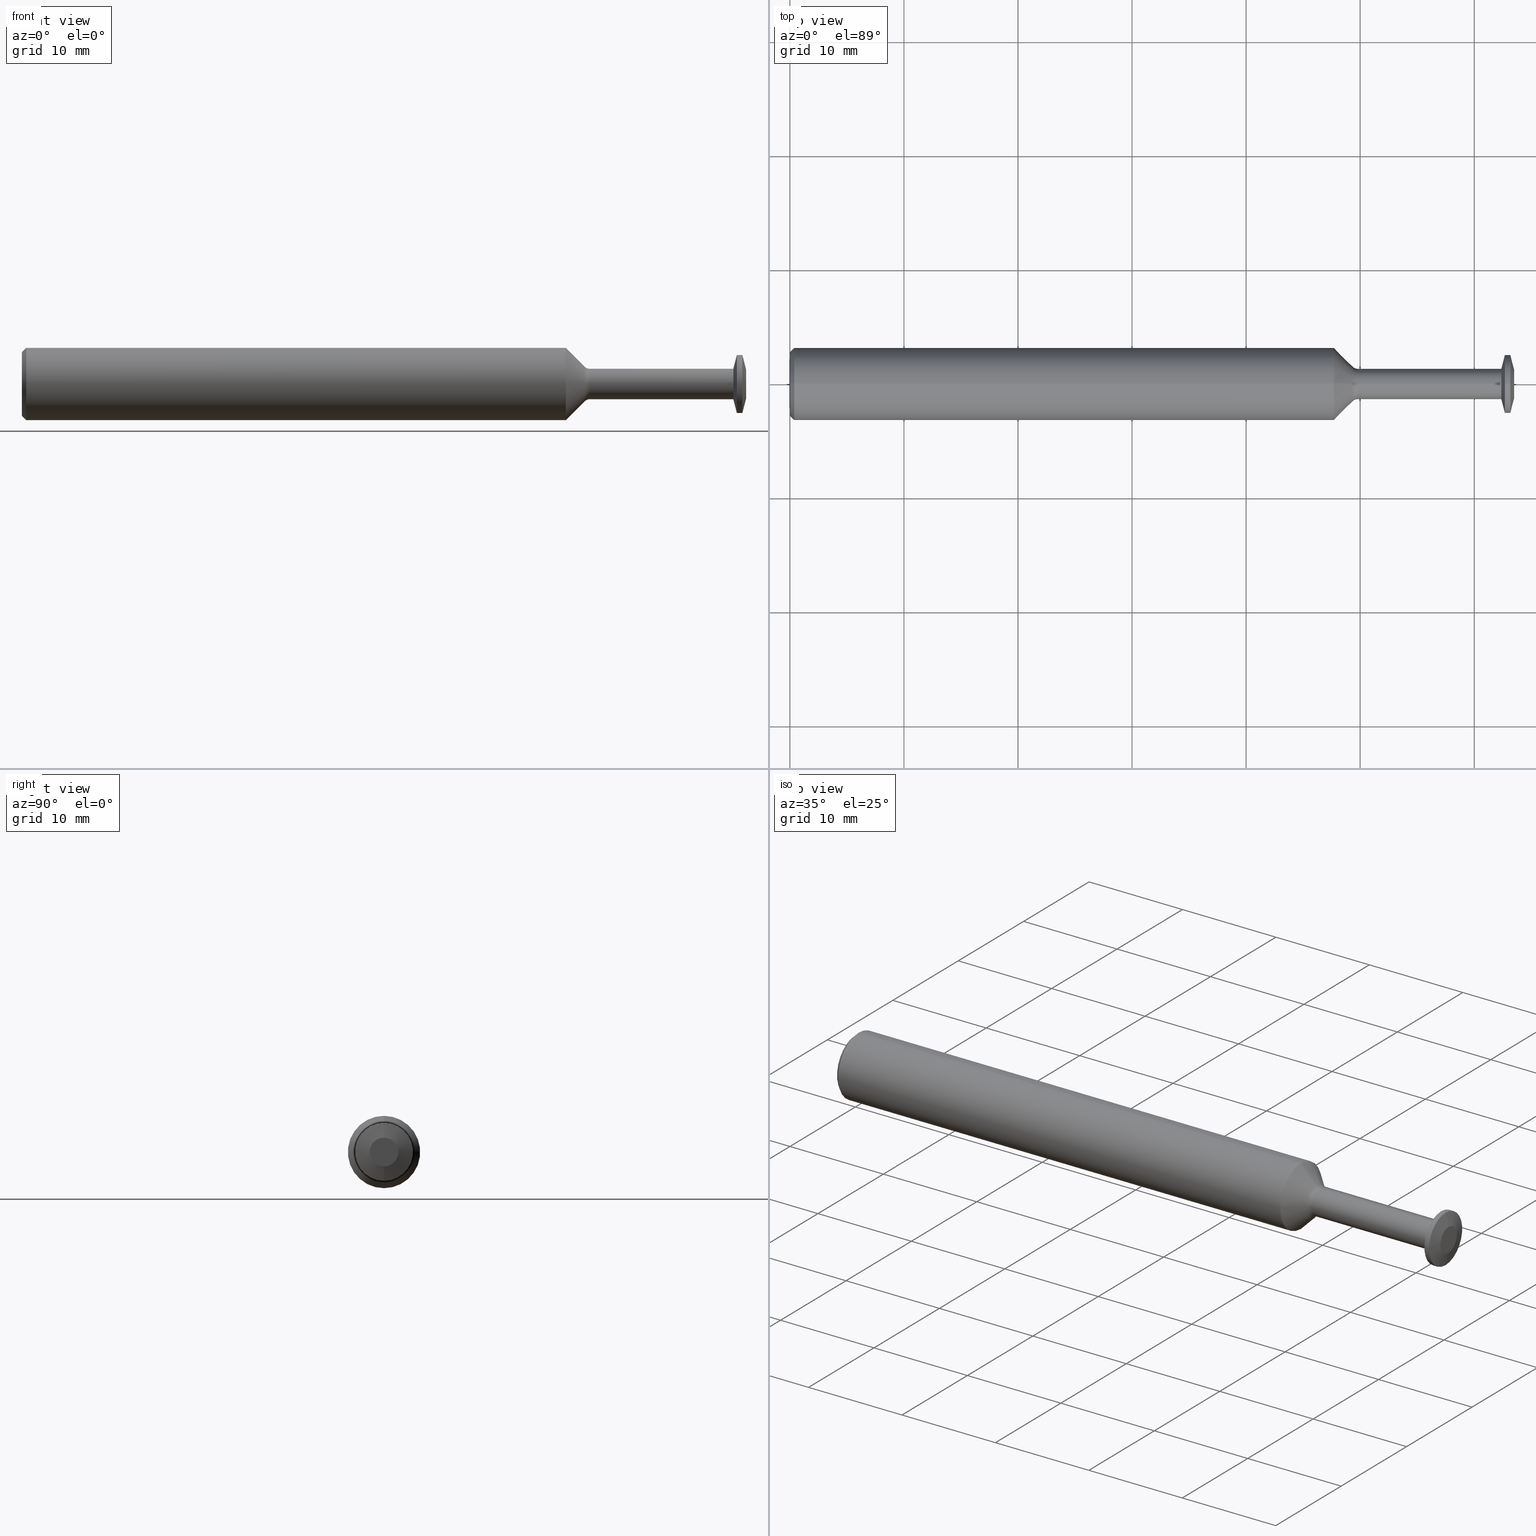
[diagram: canonical four-view strip — front | top / right | iso, engineering-drawing reading convention]
A machine part, canonical four-view strip (front | top / right | iso — engineering-drawing reading convention). The complete STEP part file that produces these views, byte-faithful:
ISO-10303-21;
HEADER;
FILE_DESCRIPTION (( 'STEP AP203' ),
    '1' );
FILE_NAME ('SPTM200FA-14.STEP',
    '2021-12-02T21:36:03',
    ( '' ),
    ( '' ),
    'SwSTEP 2.0',
    'SolidWorks 2020',
    '' );
FILE_SCHEMA (( 'CONFIG_CONTROL_DESIGN' ));
ENDSEC;

DATA;
#1 = DIRECTION ( 'NONE',  ( -1.000000000000000000, -0.000000000000000000, -0.000000000000000000 ) ) ;
#2 = LINE ( 'NONE', #13, #137 ) ;
#3 = CIRCLE ( 'NONE', #298, 0.09999999999999956146 ) ;
#4 = AXIS2_PLACEMENT_3D ( 'NONE', #197, #480, #399 ) ;
#5 = CARTESIAN_POINT ( 'NONE',  ( 1.942677669529663476, 0.000000000000000000, 0.000000000000000000 ) ) ;
#6 = CARTESIAN_POINT ( 'NONE',  ( 1.877650000000000485, 0.000000000000000000, 0.1248500000000000026 ) ) ;
#7 = EDGE_CURVE ( 'NONE', #182, #157, #390, .T. ) ;
#8 = PERSON_AND_ORGANIZATION ( #440, #47 ) ;
#9 = FACE_OUTER_BOUND ( 'NONE', #180, .T. ) ;
#10 = CARTESIAN_POINT ( 'NONE',  ( 0.000000000000000000, 0.000000000000000000, 0.000000000000000000 ) ) ;
#11 = FACE_OUTER_BOUND ( 'NONE', #460, .T. ) ;
#12 = AXIS2_PLACEMENT_3D ( 'NONE', #125, #201, #194 ) ;
#13 = CARTESIAN_POINT ( 'NONE',  ( 2.467933803801429793, 0.000000000000000000, -0.09999999999999954758 ) ) ;
#14 = DIRECTION ( 'NONE',  ( 0.000000000000000000, 0.000000000000000000, 1.000000000000000000 ) ) ;
#15 = ORIENTED_EDGE ( 'NONE', *, *, #324, .T. ) ;
#16 = APPLICATION_PROTOCOL_DEFINITION ( 'international standard', 'config_control_design', 1994, #37 ) ;
#17 = FACE_OUTER_BOUND ( 'NONE', #346, .T. ) ;
#18 = ORIENTED_EDGE ( 'NONE', *, *, #342, .T. ) ;
#19 = DIRECTION ( 'NONE',  ( 0.000000000000000000, 0.000000000000000000, -1.000000000000000000 ) ) ;
#20 = ORIENTED_EDGE ( 'NONE', *, *, #92, .T. ) ;
#21 = EDGE_CURVE ( 'NONE', #215, #225, #318, .T. ) ;
#22 = ORIENTED_EDGE ( 'NONE', *, *, #393, .T. ) ;
#23 = ORIENTED_EDGE ( 'NONE', *, *, #451, .F. ) ;
#24 = AXIS2_PLACEMENT_3D ( 'NONE', #55, #502, #218 ) ;
#25 = AXIS2_PLACEMENT_3D ( 'NONE', #359, #528, #443 ) ;
#26 = ORIENTED_EDGE ( 'NONE', *, *, #7, .T. ) ;
#27 = DIRECTION ( 'NONE',  ( 0.000000000000000000, 0.000000000000000000, 1.000000000000000000 ) ) ;
#28 = CARTESIAN_POINT ( 'NONE',  ( 0.000000000000000000, 0.000000000000000000, 0.1248500000000000026 ) ) ;
#29 = DIRECTION ( 'NONE',  ( 0.000000000000000000, 0.000000000000000000, 1.000000000000000000 ) ) ;
#30 = ORIENTED_EDGE ( 'NONE', *, *, #473, .F. ) ;
#31 = DIRECTION ( 'NONE',  ( 0.000000000000000000, -1.000000000000000000, 0.000000000000000000 ) ) ;
#32 = CIRCLE ( 'NONE', #171, 0.05249999999999999806 ) ;
#33 = ORIENTED_EDGE ( 'NONE', *, *, #44, .T. ) ;
#34 = PRODUCT_DEFINITION_FORMATION_WITH_SPECIFIED_SOURCE ( 'ANY', '', #93, .NOT_KNOWN. ) ;
#35 = CC_DESIGN_DATE_AND_TIME_ASSIGNMENT ( #496, #67, ( #65 ) ) ;
#36 = EDGE_CURVE ( 'NONE', #425, #527, #277, .T. ) ;
#37 = APPLICATION_CONTEXT ( 'configuration controlled 3d designs of mechanical parts and assemblies' ) ;
#38 = DIRECTION ( 'NONE',  ( 0.000000000000000000, 0.000000000000000000, 1.000000000000000000 ) ) ;
#39 = ORIENTED_EDGE ( 'NONE', *, *, #510, .T. ) ;
#40 = CARTESIAN_POINT ( 'NONE',  ( 2.455737876683962817, 9.337931843498541365E-18, 0.05249999999999999806 ) ) ;
#41 = CARTESIAN_POINT ( 'NONE',  ( 2.500000000000000000, 0.04949999999999953049, 0.000000000000000000 ) ) ;
#42 = CARTESIAN_POINT ( 'NONE',  ( 0.01500000000000024925, 1.528971528735470422E-17, -0.1248500000000000026 ) ) ;
#43 = EDGE_CURVE ( 'NONE', #79, #312, #2, .T. ) ;
#44 = EDGE_CURVE ( 'NONE', #263, #312, #289, .T. ) ;
#45 = DIRECTION ( 'NONE',  ( 1.000000000000000000, 0.000000000000000000, 0.000000000000000000 ) ) ;
#46 = CIRCLE ( 'NONE', #105, 0.1098499999999999199 ) ;
#47 = ORGANIZATION ( 'UNSPECIFIED', 'UNSPECIFIED', '' ) ;
#48 = DIRECTION ( 'NONE',  ( 0.000000000000000000, 0.000000000000000000, -1.000000000000000000 ) ) ;
#49 = DIRECTION ( 'NONE',  ( -1.000000000000000000, -0.000000000000000000, -0.000000000000000000 ) ) ;
#50 = CARTESIAN_POINT ( 'NONE',  ( 2.500000000000000000, 0.000000000000000000, 0.04949999999999953049 ) ) ;
#51 = DIRECTION ( 'NONE',  ( 1.000000000000000000, 0.000000000000000000, 0.000000000000000000 ) ) ;
#52 = DIRECTION ( 'NONE',  ( 0.2486898871648567100, 0.000000000000000000, -0.9685831611286307430 ) ) ;
#53 = ADVANCED_FACE ( 'NONE', ( #9 ), #449, .T. ) ;
#54 = LOCAL_TIME ( 13, 36, 3.000000000000000000, #499 ) ;
#55 = CARTESIAN_POINT ( 'NONE',  ( 0.000000000000000000, 0.000000000000000000, 0.000000000000000000 ) ) ;
#56 = EDGE_LOOP ( 'NONE', ( #75, #33, #429, #151 ) ) ;
#57 = PERSON_AND_ORGANIZATION_ROLE ( 'design_supplier' ) ;
#58 = CARTESIAN_POINT ( 'NONE',  ( 0.000000000000000000, 0.000000000000000000, 0.000000000000000000 ) ) ;
#59 = ORIENTED_EDGE ( 'NONE', *, *, #510, .F. ) ;
#60 = APPROVAL_DATE_TIME ( #470, #351 ) ;
#61 = LINE ( 'NONE', #150, #95 ) ;
#62 = EDGE_CURVE ( 'NONE', #69, #523, #167, .T. ) ;
#63 = ORIENTED_EDGE ( 'NONE', *, *, #379, .T. ) ;
#64 = AXIS2_PLACEMENT_3D ( 'NONE', #227, #74, #14 ) ;
#65 = SECURITY_CLASSIFICATION ( '', '', #461 ) ;
#66 = ORIENTED_EDGE ( 'NONE', *, *, #451, .T. ) ;
#67 = DATE_TIME_ROLE ( 'classification_date' ) ;
#68 = VECTOR ( 'NONE', #49, 39.37007874015748143 ) ;
#69 = VERTEX_POINT ( 'NONE', #208 ) ;
#70 = COORDINATED_UNIVERSAL_TIME_OFFSET ( 8, 0, .BEHIND. ) ;
#71 = DIRECTION ( 'NONE',  ( -1.000000000000000000, -0.000000000000000000, -0.000000000000000000 ) ) ;
#72 = VECTOR ( 'NONE', #297, 39.37007874015748143 ) ;
#73 = EDGE_LOOP ( 'NONE', ( #396, #515, #20, #110 ) ) ;
#74 = DIRECTION ( 'NONE',  ( -1.000000000000000000, -0.000000000000000000, -0.000000000000000000 ) ) ;
#75 = ORIENTED_EDGE ( 'NONE', *, *, #516, .T. ) ;
#76 = CARTESIAN_POINT ( 'NONE',  ( 0.000000000000000000, 0.000000000000000000, -0.1098499999999999199 ) ) ;
#77 = ORIENTED_EDGE ( 'NONE', *, *, #206, .T. ) ;
#78 = CARTESIAN_POINT ( 'NONE',  ( 2.467933803801429793, 0.000000000000000000, 0.000000000000000000 ) ) ;
#79 = VERTEX_POINT ( 'NONE', #361 ) ;
#80 = CIRCLE ( 'NONE', #12, 0.1098499999999999199 ) ;
#81 = DIRECTION ( 'NONE',  ( -1.000000000000000000, -0.000000000000000000, -0.000000000000000000 ) ) ;
#82 = LINE ( 'NONE', #364, #522 ) ;
#83 = ADVANCED_FACE ( 'NONE', ( #249 ), #85, .T. ) ;
#84 = CARTESIAN_POINT ( 'NONE',  ( 2.455737876683962817, 0.000000000000000000, 0.000000000000000000 ) ) ;
#85 = CYLINDRICAL_SURFACE ( 'NONE', #271, 0.1248500000000000026 ) ;
#86 = CYLINDRICAL_SURFACE ( 'NONE', #283, 0.1248500000000000026 ) ;
#87 = DIRECTION ( 'NONE',  ( 0.000000000000000000, 0.000000000000000000, -1.000000000000000000 ) ) ;
#88 = CONICAL_SURFACE ( 'NONE', #352, 0.05982233047033617968, 0.7853981633974533860 ) ;
#89 = FACE_OUTER_BOUND ( 'NONE', #345, .T. ) ;
#90 = COORDINATED_UNIVERSAL_TIME_OFFSET ( 8, 0, .BEHIND. ) ;
#91 = FACE_OUTER_BOUND ( 'NONE', #56, .T. ) ;
#92 = EDGE_CURVE ( 'NONE', #225, #436, #121, .T. ) ;
#93 = PRODUCT ( 'SPTM200FA-14', 'SPTM200FA-14', '', ( #166 ) ) ;
#94 = FACE_OUTER_BOUND ( 'NONE', #441, .T. ) ;
#95 = VECTOR ( 'NONE', #343, 39.37007874015748143 ) ;
#96 = APPROVAL_DATE_TIME ( #327, #221 ) ;
#97 = AXIS2_PLACEMENT_3D ( 'NONE', #321, #120, #439 ) ;
#98 = FACE_OUTER_BOUND ( 'NONE', #432, .T. ) ;
#99 = ORIENTED_EDGE ( 'NONE', *, *, #411, .T. ) ;
#100 = PERSON_AND_ORGANIZATION ( #440, #47 ) ;
#101 = ADVANCED_FACE ( 'NONE', ( #89 ), #360, .T. ) ;
#102 = CARTESIAN_POINT ( 'NONE',  ( 1.942677669529663476, 0.000000000000000000, 0.000000000000000000 ) ) ;
#103 = PRODUCT_DEFINITION_SHAPE ( 'NONE', 'NONE',  #514 ) ;
#104 = ORIENTED_EDGE ( 'NONE', *, *, #279, .T. ) ;
#105 = AXIS2_PLACEMENT_3D ( 'NONE', #295, #323, #87 ) ;
#106 = APPROVAL_PERSON_ORGANIZATION ( #8, #132, #413 ) ;
#107 = ORIENTED_EDGE ( 'NONE', *, *, #223, .F. ) ;
#108 = ORIENTED_EDGE ( 'NONE', *, *, #324, .F. ) ;
#109 = FACE_OUTER_BOUND ( 'NONE', #113, .T. ) ;
#110 = ORIENTED_EDGE ( 'NONE', *, *, #335, .F. ) ;
#111 = FACE_OUTER_BOUND ( 'NONE', #300, .T. ) ;
#112 = AXIS2_PLACEMENT_3D ( 'NONE', #58, #519, #27 ) ;
#113 = EDGE_LOOP ( 'NONE', ( #222, #59, #438, #259 ) ) ;
#114 = DIRECTION ( 'NONE',  ( 0.000000000000000000, 0.000000000000000000, 1.000000000000000000 ) ) ;
#115 = ADVANCED_FACE ( 'NONE', ( #373 ), #272, .T. ) ;
#116 = ORIENTED_EDGE ( 'NONE', *, *, #183, .F. ) ;
#117 = MANIFOLD_SOLID_BREP ( 'Chamfer1', #269 ) ;
#118 = CARTESIAN_POINT ( 'NONE',  ( 1.960355339059327573, 6.429395695523591642E-18, -0.05249999999999986622 ) ) ;
#119 = VERTEX_POINT ( 'NONE', #367 ) ;
#120 = DIRECTION ( 'NONE',  ( 1.000000000000000000, 0.000000000000000000, 0.000000000000000000 ) ) ;
#121 = LINE ( 'NONE', #50, #184 ) ;
#122 = VECTOR ( 'NONE', #521, 39.37007874015748143 ) ;
#123 = LINE ( 'NONE', #285, #146 ) ;
#124 = DIRECTION ( 'NONE',  ( 0.000000000000000000, 0.000000000000000000, 1.000000000000000000 ) ) ;
#125 = CARTESIAN_POINT ( 'NONE',  ( 0.000000000000000000, 0.000000000000000000, 0.000000000000000000 ) ) ;
#126 = CARTESIAN_POINT ( 'NONE',  ( 2.500000000000000000, 0.000000000000000000, 0.000000000000000000 ) ) ;
#127 = PERSON_AND_ORGANIZATION_ROLE ( 'classification_officer' ) ;
#128 = DIRECTION ( 'NONE',  ( 0.000000000000000000, 0.000000000000000000, 1.000000000000000000 ) ) ;
#129 = AXIS2_PLACEMENT_3D ( 'NONE', #282, #1, #246 ) ;
#130 = VECTOR ( 'NONE', #175, 39.37007874015748143 ) ;
#131 = APPROVAL_STATUS ( 'not_yet_approved' ) ;
#132 = APPROVAL ( #131, 'UNSPECIFIED' ) ;
#133 = EDGE_CURVE ( 'NONE', #523, #465, #82, .T. ) ;
#134 = DIRECTION ( 'NONE',  ( -0.2486898871648597353, 0.000000000000000000, 0.9685831611286298548 ) ) ;
#135 = CARTESIAN_POINT ( 'NONE',  ( 2.500000000000000000, 6.062001655779341041E-18, -0.04949999999999953049 ) ) ;
#136 = DATE_AND_TIME ( #251, #524 ) ;
#137 = VECTOR ( 'NONE', #52, 39.37007874015748143 ) ;
#138 = CARTESIAN_POINT ( 'NONE',  ( 1.960355339059327351, 0.000000000000000000, 0.000000000000000000 ) ) ;
#139 = ORIENTED_EDGE ( 'NONE', *, *, #529, .F. ) ;
#140 = VECTOR ( 'NONE', #453, 39.37007874015748143 ) ;
#141 = CC_DESIGN_APPROVAL ( #132, ( #514 ) ) ;
#142 = DIRECTION ( 'NONE',  ( -1.000000000000000000, -0.000000000000000000, -0.000000000000000000 ) ) ;
#143 = DIRECTION ( 'NONE',  ( 0.000000000000000000, 0.000000000000000000, 1.000000000000000000 ) ) ;
#144 = ORIENTED_EDGE ( 'NONE', *, *, #304, .F. ) ;
#145 = APPROVAL_ROLE ( '' ) ;
#146 = VECTOR ( 'NONE', #445, 39.37007874015748143 ) ;
#147 = EDGE_CURVE ( 'NONE', #375, #468, #46, .T. ) ;
#148 = ORIENTED_EDGE ( 'NONE', *, *, #62, .T. ) ;
#149 = ORIENTED_EDGE ( 'NONE', *, *, #418, .F. ) ;
#150 = CARTESIAN_POINT ( 'NONE',  ( 0.000000000000000000, 0.000000000000000000, -0.1098499999999999199 ) ) ;
#151 = ORIENTED_EDGE ( 'NONE', *, *, #435, .F. ) ;
#152 = EDGE_CURVE ( 'NONE', #69, #380, #484, .T. ) ;
#153 = FACE_OUTER_BOUND ( 'NONE', #193, .T. ) ;
#154 = AXIS2_PLACEMENT_3D ( 'NONE', #126, #508, #143 ) ;
#155 = ORIENTED_EDGE ( 'NONE', *, *, #279, .F. ) ;
#156 = DIRECTION ( 'NONE',  ( -1.000000000000000000, -0.000000000000000000, -0.000000000000000000 ) ) ;
#157 = VERTEX_POINT ( 'NONE', #407 ) ;
#158 = CARTESIAN_POINT ( 'NONE',  ( 1.942677669529663476, 0.000000000000000000, 0.000000000000000000 ) ) ;
#159 = ORIENTED_EDGE ( 'NONE', *, *, #334, .F. ) ;
#160 = VECTOR ( 'NONE', #293, 39.37007874015748143 ) ;
#161 = DIRECTION ( 'NONE',  ( -1.000000000000000000, -0.000000000000000000, -0.000000000000000000 ) ) ;
#162 = CONICAL_SURFACE ( 'NONE', #397, 0.04949999999999953049, 1.319468914507708091 ) ;
#163 = CARTESIAN_POINT ( 'NONE',  ( 0.000000000000000000, 0.000000000000000000, 0.000000000000000000 ) ) ;
#164 = LINE ( 'NONE', #363, #122 ) ;
#165 = LINE ( 'NONE', #205, #140 ) ;
#166 = MECHANICAL_CONTEXT ( 'NONE', #478, 'mechanical' ) ;
#167 = LINE ( 'NONE', #447, #369 ) ;
#168 = PERSON_AND_ORGANIZATION_ROLE ( 'creator' ) ;
#169 = ADVANCED_FACE ( 'NONE', ( #91 ), #402, .T. ) ;
#170 = PLANE ( 'NONE',  #504 ) ;
#171 = AXIS2_PLACEMENT_3D ( 'NONE', #189, #378, #301 ) ;
#172 = LOCAL_TIME ( 13, 36, 3.000000000000000000, #70 ) ;
#173 = PERSON_AND_ORGANIZATION_ROLE ( 'design_owner' ) ;
#174 = DIRECTION ( 'NONE',  ( -1.000000000000000000, -0.000000000000000000, -0.000000000000000000 ) ) ;
#175 = DIRECTION ( 'NONE',  ( -0.7071067811865439090, 0.000000000000000000, 0.7071067811865511255 ) ) ;
#176 = CARTESIAN_POINT ( 'NONE',  ( 2.487033803801429688, 0.000000000000000000, 0.000000000000000000 ) ) ;
#177 = ORIENTED_EDGE ( 'NONE', *, *, #133, .T. ) ;
#178 = DATE_AND_TIME ( #294, #54 ) ;
#179 = CARTESIAN_POINT ( 'NONE',  ( 0.01500000000000024925, 0.000000000000000000, 0.000000000000000000 ) ) ;
#180 = EDGE_LOOP ( 'NONE', ( #239, #266, #159, #196 ) ) ;
#181 = CIRCLE ( 'NONE', #431, 0.1248500000000000026 ) ;
#182 = VERTEX_POINT ( 'NONE', #6 ) ;
#183 = EDGE_CURVE ( 'NONE', #468, #157, #165, .T. ) ;
#184 = VECTOR ( 'NONE', #134, 39.37007874015748143 ) ;
#185 = AXIS2_PLACEMENT_3D ( 'NONE', #163, #498, #336 ) ;
#186 = CALENDAR_DATE ( 2021, 2, 12 ) ;
#187 = CIRCLE ( 'NONE', #458, 0.05982233047033617968 ) ;
#188 = ORIENTED_EDGE ( 'NONE', *, *, #379, .F. ) ;
#189 = CARTESIAN_POINT ( 'NONE',  ( 2.455737876683962817, 0.000000000000000000, 0.000000000000000000 ) ) ;
#190 = DIRECTION ( 'NONE',  ( -1.000000000000000000, -0.000000000000000000, -0.000000000000000000 ) ) ;
#191 = ADVANCED_FACE ( 'NONE', ( #11 ), #170, .F. ) ;
#192 = DIRECTION ( 'NONE',  ( -1.000000000000000000, -0.000000000000000000, -0.000000000000000000 ) ) ;
#193 = EDGE_LOOP ( 'NONE', ( #99, #177, #463, #350 ) ) ;
#194 = DIRECTION ( 'NONE',  ( 0.000000000000000000, 0.000000000000000000, -1.000000000000000000 ) ) ;
#195 = AXIS2_PLACEMENT_3D ( 'NONE', #406, #81, #242 ) ;
#196 = ORIENTED_EDGE ( 'NONE', *, *, #36, .F. ) ;
#197 = CARTESIAN_POINT ( 'NONE',  ( 2.487033803801429688, 0.000000000000000000, 0.000000000000000000 ) ) ;
#198 = ORIENTED_EDGE ( 'NONE', *, *, #152, .T. ) ;
#199 = DIRECTION ( 'NONE',  ( -1.000000000000000000, -0.000000000000000000, -0.000000000000000000 ) ) ;
#200 = DIRECTION ( 'NONE',  ( -0.000000000000000000, 0.000000000000000000, 1.000000000000000000 ) ) ;
#201 = DIRECTION ( 'NONE',  ( -1.000000000000000000, -0.000000000000000000, -0.000000000000000000 ) ) ;
#202 = DIRECTION ( 'NONE',  ( -0.7071067811865439090, 8.659560562354977232E-17, -0.7071067811865511255 ) ) ;
#203 = LOCAL_TIME ( 13, 36, 3.000000000000000000, #207 ) ;
#204 =( CONVERSION_BASED_UNIT ( 'INCH', #296 ) LENGTH_UNIT ( ) NAMED_UNIT ( #526 ) );
#205 = CARTESIAN_POINT ( 'NONE',  ( 0.000000000000000000, 1.345274508863366152E-17, 0.1098499999999999199 ) ) ;
#206 = EDGE_CURVE ( 'NONE', #380, #527, #495, .T. ) ;
#207 = COORDINATED_UNIVERSAL_TIME_OFFSET ( 8, 0, .BEHIND. ) ;
#208 = CARTESIAN_POINT ( 'NONE',  ( 1.942677669529663476, 7.326122552803247916E-18, -0.05982233047033626294 ) ) ;
#209 = LINE ( 'NONE', #370, #130 ) ;
#210 = AXIS2_PLACEMENT_3D ( 'NONE', #211, #45, #245 ) ;
#211 = CARTESIAN_POINT ( 'NONE',  ( 2.467933803801429793, 0.000000000000000000, 0.000000000000000000 ) ) ;
#212 =( GEOMETRIC_REPRESENTATION_CONTEXT ( 3 ) GLOBAL_UNCERTAINTY_ASSIGNED_CONTEXT ( ( #518 ) ) GLOBAL_UNIT_ASSIGNED_CONTEXT ( ( #204, #408, #417 ) ) REPRESENTATION_CONTEXT ( 'NONE', 'WORKASPACE' ) );
#213 = APPROVAL_STATUS ( 'not_yet_approved' ) ;
#214 = DIRECTION ( 'NONE',  ( 0.000000000000000000, 0.000000000000000000, 1.000000000000000000 ) ) ;
#215 = VERTEX_POINT ( 'NONE', #490 ) ;
#216 = DESIGN_CONTEXT ( 'detailed design', #37, 'design' ) ;
#217 = APPROVAL_DATE_TIME ( #178, #132 ) ;
#218 = DIRECTION ( 'NONE',  ( 0.000000000000000000, 0.000000000000000000, -1.000000000000000000 ) ) ;
#219 = SHAPE_DEFINITION_REPRESENTATION ( #103, #385 ) ;
#220 = DIRECTION ( 'NONE',  ( -1.000000000000000000, -0.000000000000000000, -0.000000000000000000 ) ) ;
#221 = APPROVAL ( #213, 'UNSPECIFIED' ) ;
#222 = ORIENTED_EDGE ( 'NONE', *, *, #152, .F. ) ;
#223 = EDGE_CURVE ( 'NONE', #225, #215, #381, .T. ) ;
#224 = ORIENTED_EDGE ( 'NONE', *, *, #411, .F. ) ;
#225 = VERTEX_POINT ( 'NONE', #273 ) ;
#226 = AXIS2_PLACEMENT_3D ( 'NONE', #459, #232, #29 ) ;
#227 = CARTESIAN_POINT ( 'NONE',  ( 1.877650000000000485, 0.000000000000000000, 0.000000000000000000 ) ) ;
#228 = CC_DESIGN_PERSON_AND_ORGANIZATION_ASSIGNMENT ( #100, #127, ( #65 ) ) ;
#229 = CIRCLE ( 'NONE', #4, 0.09999999999999956146 ) ;
#230 = ADVANCED_FACE ( 'NONE', ( #506 ), #162, .T. ) ;
#231 = ORIENTED_EDGE ( 'NONE', *, *, #44, .F. ) ;
#232 = DIRECTION ( 'NONE',  ( -1.000000000000000000, -0.000000000000000000, -0.000000000000000000 ) ) ;
#233 = ORIENTED_EDGE ( 'NONE', *, *, #43, .T. ) ;
#234 = LINE ( 'NONE', #437, #372 ) ;
#235 = ORIENTED_EDGE ( 'NONE', *, *, #281, .T. ) ;
#236 = FACE_OUTER_BOUND ( 'NONE', #307, .T. ) ;
#237 = CIRCLE ( 'NONE', #226, 0.05249999999999986622 ) ;
#238 = CONICAL_SURFACE ( 'NONE', #97, 0.09999999999999954758, 1.319468914507711199 ) ;
#239 = ORIENTED_EDGE ( 'NONE', *, *, #304, .T. ) ;
#240 = CC_DESIGN_PERSON_AND_ORGANIZATION_ASSIGNMENT ( #450, #168, ( #34 ) ) ;
#241 = ADVANCED_FACE ( 'NONE', ( #462 ), #457, .F. ) ;
#242 = DIRECTION ( 'NONE',  ( 0.000000000000000000, 0.000000000000000000, 1.000000000000000000 ) ) ;
#243 = DIRECTION ( 'NONE',  ( 0.000000000000000000, 0.000000000000000000, 1.000000000000000000 ) ) ;
#244 = CARTESIAN_POINT ( 'NONE',  ( 0.000000000000000000, 0.000000000000000000, 0.000000000000000000 ) ) ;
#245 = DIRECTION ( 'NONE',  ( 0.000000000000000000, 0.000000000000000000, -1.000000000000000000 ) ) ;
#246 = DIRECTION ( 'NONE',  ( 0.000000000000000000, 0.000000000000000000, 1.000000000000000000 ) ) ;
#247 = AXIS2_PLACEMENT_3D ( 'NONE', #430, #71, #419 ) ;
#248 = EDGE_CURVE ( 'NONE', #465, #157, #181, .T. ) ;
#249 = FACE_OUTER_BOUND ( 'NONE', #340, .T. ) ;
#250 = DIRECTION ( 'NONE',  ( -1.000000000000000000, -0.000000000000000000, -0.000000000000000000 ) ) ;
#251 = CALENDAR_DATE ( 2021, 2, 12 ) ;
#252 = DIRECTION ( 'NONE',  ( -1.000000000000000000, -0.000000000000000000, -0.000000000000000000 ) ) ;
#253 = VECTOR ( 'NONE', #190, 39.37007874015748143 ) ;
#254 = DIRECTION ( 'NONE',  ( 0.000000000000000000, 0.000000000000000000, 1.000000000000000000 ) ) ;
#255 = AXIS2_PLACEMENT_3D ( 'NONE', #284, #366, #494 ) ;
#256 = PLANE ( 'NONE',  #24 ) ;
#257 = AXIS2_PLACEMENT_3D ( 'NONE', #84, #161, #38 ) ;
#258 = DIRECTION ( 'NONE',  ( 1.000000000000000000, 0.000000000000000000, 0.000000000000000000 ) ) ;
#259 = ORIENTED_EDGE ( 'NONE', *, *, #334, .T. ) ;
#260 = APPLICATION_PROTOCOL_DEFINITION ( 'international standard', 'config_control_design', 1994, #478 ) ;
#261 = CYLINDRICAL_SURFACE ( 'NONE', #112, 0.05249999999999993561 ) ;
#262 = ADVANCED_FACE ( 'NONE', ( #389 ), #261, .T. ) ;
#263 = VERTEX_POINT ( 'NONE', #382 ) ;
#264 = AXIS2_PLACEMENT_3D ( 'NONE', #409, #328, #404 ) ;
#265 = APPROVAL_STATUS ( 'not_yet_approved' ) ;
#266 = ORIENTED_EDGE ( 'NONE', *, *, #473, .T. ) ;
#267 = ORIENTED_EDGE ( 'NONE', *, *, #43, .F. ) ;
#268 = CARTESIAN_POINT ( 'NONE',  ( 1.960355339059327351, 0.000000000000000000, 0.000000000000000000 ) ) ;
#269 = CLOSED_SHELL ( 'NONE', ( #115, #493, #353, #241, #53, #428, #169, #371, #191, #230, #315, #101, #262, #288, #485, #83, #368, #466 ) ) ;
#270 = ORIENTED_EDGE ( 'NONE', *, *, #529, .T. ) ;
#271 = AXIS2_PLACEMENT_3D ( 'NONE', #452, #174, #243 ) ;
#272 = CONICAL_SURFACE ( 'NONE', #185, 0.1098499999999999199, 0.7853981633974426169 ) ;
#273 = CARTESIAN_POINT ( 'NONE',  ( 2.500000000000000000, 0.000000000000000000, 0.04949999999999953049 ) ) ;
#274 = CONICAL_SURFACE ( 'NONE', #354, 0.05982233047033617968, 0.7853981633974533860 ) ;
#275 = EDGE_LOOP ( 'NONE', ( #149, #392, #427, #155 ) ) ;
#276 = CARTESIAN_POINT ( 'NONE',  ( 1.960355339059327351, 0.000000000000000000, 0.07749999999999952760 ) ) ;
#277 = LINE ( 'NONE', #412, #160 ) ;
#278 = CARTESIAN_POINT ( 'NONE',  ( 0.000000000000000000, 0.000000000000000000, 0.000000000000000000 ) ) ;
#279 = EDGE_CURVE ( 'NONE', #375, #465, #61, .T. ) ;
#280 = EDGE_LOOP ( 'NONE', ( #116, #356, #104, #471 ) ) ;
#281 = EDGE_CURVE ( 'NONE', #157, #465, #405, .T. ) ;
#282 = CARTESIAN_POINT ( 'NONE',  ( 2.500000000000000000, 0.000000000000000000, 0.000000000000000000 ) ) ;
#283 = AXIS2_PLACEMENT_3D ( 'NONE', #278, #477, #114 ) ;
#284 = CARTESIAN_POINT ( 'NONE',  ( 0.000000000000000000, 0.000000000000000000, 0.000000000000000000 ) ) ;
#285 = CARTESIAN_POINT ( 'NONE',  ( 2.467933803801429793, 1.224646799147347568E-17, 0.09999999999999954758 ) ) ;
#286 = CARTESIAN_POINT ( 'NONE',  ( 0.000000000000000000, 1.224646799147347568E-17, -0.09999999999999954758 ) ) ;
#287 = FACE_OUTER_BOUND ( 'NONE', #416, .T. ) ;
#288 = ADVANCED_FACE ( 'NONE', ( #109 ), #475, .F. ) ;
#289 = LINE ( 'NONE', #286, #68 ) ;
#290 = COORDINATED_UNIVERSAL_TIME_OFFSET ( 8, 0, .BEHIND. ) ;
#291 = CIRCLE ( 'NONE', #64, 0.1248500000000000026 ) ;
#292 = CC_DESIGN_APPROVAL ( #221, ( #34 ) ) ;
#293 = DIRECTION ( 'NONE',  ( -1.000000000000000000, -0.000000000000000000, -0.000000000000000000 ) ) ;
#294 = CALENDAR_DATE ( 2021, 2, 12 ) ;
#295 = CARTESIAN_POINT ( 'NONE',  ( 0.000000000000000000, 0.000000000000000000, 0.000000000000000000 ) ) ;
#296 = LENGTH_MEASURE_WITH_UNIT ( LENGTH_MEASURE( 0.02539999999999999897 ), #376 );
#297 = DIRECTION ( 'NONE',  ( -0.2486898871648597353, 1.186172267984201680E-16, -0.9685831611286298548 ) ) ;
#298 = AXIS2_PLACEMENT_3D ( 'NONE', #176, #192, #415 ) ;
#299 = DIRECTION ( 'NONE',  ( 0.000000000000000000, 0.000000000000000000, 1.000000000000000000 ) ) ;
#300 = EDGE_LOOP ( 'NONE', ( #231, #530, #469, #188 ) ) ;
#301 = DIRECTION ( 'NONE',  ( 0.000000000000000000, 0.000000000000000000, 1.000000000000000000 ) ) ;
#302 = ORIENTED_EDGE ( 'NONE', *, *, #426, .T. ) ;
#303 = CC_DESIGN_PERSON_AND_ORGANIZATION_ASSIGNMENT ( #501, #333, ( #514 ) ) ;
#304 = EDGE_CURVE ( 'NONE', #425, #79, #32, .T. ) ;
#305 = ORIENTED_EDGE ( 'NONE', *, *, #516, .F. ) ;
#306 = AXIS2_PLACEMENT_3D ( 'NONE', #489, #199, #403 ) ;
#307 = EDGE_LOOP ( 'NONE', ( #476, #302, #270, #108 ) ) ;
#308 = VERTEX_POINT ( 'NONE', #309 ) ;
#309 = CARTESIAN_POINT ( 'NONE',  ( 1.942677669529663476, 0.000000000000000000, 0.05982233047033626294 ) ) ;
#310 = DIRECTION ( 'NONE',  ( -1.000000000000000000, -0.000000000000000000, -0.000000000000000000 ) ) ;
#311 = DIRECTION ( 'NONE',  ( -1.000000000000000000, -0.000000000000000000, -0.000000000000000000 ) ) ;
#312 = VERTEX_POINT ( 'NONE', #474 ) ;
#313 = DIRECTION ( 'NONE',  ( 0.000000000000000000, 0.000000000000000000, 1.000000000000000000 ) ) ;
#314 = CC_DESIGN_PERSON_AND_ORGANIZATION_ASSIGNMENT ( #421, #173, ( #93 ) ) ;
#315 = ADVANCED_FACE ( 'NONE', ( #111 ), #434, .T. ) ;
#316 = EDGE_LOOP ( 'NONE', ( #420, #198, #77, #513 ) ) ;
#317 = CARTESIAN_POINT ( 'NONE',  ( 1.960355339059327573, 0.000000000000000000, 0.05249999999999986622 ) ) ;
#318 = CIRCLE ( 'NONE', #384, 0.04949999999999953049 ) ;
#319 = ORIENTED_EDGE ( 'NONE', *, *, #133, .F. ) ;
#320 = CONICAL_SURFACE ( 'NONE', #129, 0.04949999999999953049, 1.319468914507708091 ) ;
#321 = CARTESIAN_POINT ( 'NONE',  ( 2.467933803801429793, 0.000000000000000000, 0.000000000000000000 ) ) ;
#322 = CONICAL_SURFACE ( 'NONE', #424, 0.1098499999999999199, 0.7853981633974426169 ) ;
#323 = DIRECTION ( 'NONE',  ( -1.000000000000000000, -0.000000000000000000, -0.000000000000000000 ) ) ;
#324 = EDGE_CURVE ( 'NONE', #523, #182, #291, .T. ) ;
#325 = DIRECTION ( 'NONE',  ( -1.000000000000000000, -0.000000000000000000, -0.000000000000000000 ) ) ;
#326 = CARTESIAN_POINT ( 'NONE',  ( 1.960355339059327573, 0.000000000000000000, 0.000000000000000000 ) ) ;
#327 = DATE_AND_TIME ( #456, #203 ) ;
#328 = DIRECTION ( 'NONE',  ( -0.000000000000000000, 1.000000000000000000, 1.224646799147353207E-16 ) ) ;
#329 = CALENDAR_DATE ( 2021, 2, 12 ) ;
#330 = AXIS2_PLACEMENT_3D ( 'NONE', #268, #142, #299 ) ;
#331 = LOCAL_TIME ( 13, 36, 3.000000000000000000, #290 ) ;
#332 = DIRECTION ( 'NONE',  ( -1.000000000000000000, 0.000000000000000000, -0.000000000000000000 ) ) ;
#333 = PERSON_AND_ORGANIZATION_ROLE ( 'creator' ) ;
#334 = EDGE_CURVE ( 'NONE', #527, #380, #237, .T. ) ;
#335 = EDGE_CURVE ( 'NONE', #263, #436, #3, .T. ) ;
#336 = DIRECTION ( 'NONE',  ( 0.000000000000000000, 0.000000000000000000, -1.000000000000000000 ) ) ;
#337 = DIRECTION ( 'NONE',  ( -1.000000000000000000, -0.000000000000000000, -0.000000000000000000 ) ) ;
#338 = AXIS2_PLACEMENT_3D ( 'NONE', #138, #422, #339 ) ;
#339 = DIRECTION ( 'NONE',  ( 0.000000000000000000, 0.000000000000000000, 1.000000000000000000 ) ) ;
#340 = EDGE_LOOP ( 'NONE', ( #319, #15, #26, #235 ) ) ;
#341 = CIRCLE ( 'NONE', #442, 0.02499999999999966485 ) ;
#342 = EDGE_CURVE ( 'NONE', #215, #263, #500, .T. ) ;
#343 = DIRECTION ( 'NONE',  ( 0.7071067811865514585, 0.000000000000000000, -0.7071067811865435759 ) ) ;
#344 = ORIENTED_EDGE ( 'NONE', *, *, #410, .T. ) ;
#345 = EDGE_LOOP ( 'NONE', ( #23, #400, #233, #63 ) ) ;
#346 = EDGE_LOOP ( 'NONE', ( #511, #18, #305, #479 ) ) ;
#347 = DIRECTION ( 'NONE',  ( 0.000000000000000000, 0.000000000000000000, -1.000000000000000000 ) ) ;
#348 = CARTESIAN_POINT ( 'NONE',  ( 2.500000000000000000, 0.000000000000000000, 0.000000000000000000 ) ) ;
#349 = FACE_OUTER_BOUND ( 'NONE', #280, .T. ) ;
#350 = ORIENTED_EDGE ( 'NONE', *, *, #7, .F. ) ;
#351 = APPROVAL ( #265, 'UNSPECIFIED' ) ;
#352 = AXIS2_PLACEMENT_3D ( 'NONE', #102, #337, #455 ) ;
#353 = ADVANCED_FACE ( 'NONE', ( #98 ), #88, .T. ) ;
#354 = AXIS2_PLACEMENT_3D ( 'NONE', #5, #311, #448 ) ;
#355 = DIRECTION ( 'NONE',  ( 0.000000000000000000, 0.000000000000000000, -1.000000000000000000 ) ) ;
#356 = ORIENTED_EDGE ( 'NONE', *, *, #147, .F. ) ;
#357 = CARTESIAN_POINT ( 'NONE',  ( 1.877650000000000485, 1.528971528735470422E-17, -0.1248500000000000026 ) ) ;
#358 = EDGE_LOOP ( 'NONE', ( #30, #344, #483, #383 ) ) ;
#359 = CARTESIAN_POINT ( 'NONE',  ( 1.877650000000000485, 0.000000000000000000, 0.000000000000000000 ) ) ;
#360 = CONICAL_SURFACE ( 'NONE', #210, 0.09999999999999954758, 1.319468914507711199 ) ;
#361 = CARTESIAN_POINT ( 'NONE',  ( 2.455737876683962817, 0.000000000000000000, -0.05249999999999999806 ) ) ;
#362 = AXIS2_PLACEMENT_3D ( 'NONE', #179, #374, #347 ) ;
#363 = CARTESIAN_POINT ( 'NONE',  ( 0.000000000000000000, 6.429395695523596264E-18, -0.05249999999999993561 ) ) ;
#364 = CARTESIAN_POINT ( 'NONE',  ( 0.000000000000000000, 1.528971528735470422E-17, -0.1248500000000000026 ) ) ;
#365 = APPROVAL_ROLE ( '' ) ;
#366 = DIRECTION ( 'NONE',  ( -1.000000000000000000, -0.000000000000000000, -0.000000000000000000 ) ) ;
#367 = CARTESIAN_POINT ( 'NONE',  ( 2.467933803801429793, 0.000000000000000000, 0.09999999999999954758 ) ) ;
#368 = ADVANCED_FACE ( 'NONE', ( #94 ), #256, .F. ) ;
#369 = VECTOR ( 'NONE', #202, 39.37007874015748143 ) ;
#370 = CARTESIAN_POINT ( 'NONE',  ( 1.942677669529663476, 0.000000000000000000, 0.05982233047033617968 ) ) ;
#371 = ADVANCED_FACE ( 'NONE', ( #17 ), #320, .T. ) ;
#372 = VECTOR ( 'NONE', #487, 39.37007874015748143 ) ;
#373 = FACE_OUTER_BOUND ( 'NONE', #275, .T. ) ;
#374 = DIRECTION ( 'NONE',  ( 1.000000000000000000, 0.000000000000000000, 0.000000000000000000 ) ) ;
#375 = VERTEX_POINT ( 'NONE', #76 ) ;
#376 =( LENGTH_UNIT ( ) NAMED_UNIT ( * ) SI_UNIT ( $, .METRE. ) );
#377 = CC_DESIGN_DATE_AND_TIME_ASSIGNMENT ( #136, #503, ( #514 ) ) ;
#378 = DIRECTION ( 'NONE',  ( -1.000000000000000000, -0.000000000000000000, -0.000000000000000000 ) ) ;
#379 = EDGE_CURVE ( 'NONE', #312, #119, #423, .T. ) ;
#380 = VERTEX_POINT ( 'NONE', #118 ) ;
#381 = CIRCLE ( 'NONE', #154, 0.04949999999999953049 ) ;
#382 = CARTESIAN_POINT ( 'NONE',  ( 2.487033803801429688, 1.224646799147348030E-17, -0.09999999999999957534 ) ) ;
#383 = ORIENTED_EDGE ( 'NONE', *, *, #206, .F. ) ;
#384 = AXIS2_PLACEMENT_3D ( 'NONE', #348, #310, #520 ) ;
#385 = ADVANCED_BREP_SHAPE_REPRESENTATION ( 'SPTM200FA-14', ( #117, #512 ), #212 ) ;
#386 = AXIS2_PLACEMENT_3D ( 'NONE', #326, #488, #124 ) ;
#387 = ORIENTED_EDGE ( 'NONE', *, *, #418, .T. ) ;
#388 = CIRCLE ( 'NONE', #306, 0.05982233047033617968 ) ;
#389 = FACE_OUTER_BOUND ( 'NONE', #358, .T. ) ;
#390 = LINE ( 'NONE', #28, #253 ) ;
#391 = CARTESIAN_POINT ( 'NONE',  ( 2.500000000000000000, 0.000000000000000000, 0.000000000000000000 ) ) ;
#392 = ORIENTED_EDGE ( 'NONE', *, *, #183, .T. ) ;
#393 = EDGE_CURVE ( 'NONE', #119, #312, #414, .T. ) ;
#394 = DIRECTION ( 'NONE',  ( 1.000000000000000000, 0.000000000000000000, 0.000000000000000000 ) ) ;
#395 = AXIS2_PLACEMENT_3D ( 'NONE', #444, #252, #128 ) ;
#396 = ORIENTED_EDGE ( 'NONE', *, *, #342, .F. ) ;
#397 = AXIS2_PLACEMENT_3D ( 'NONE', #391, #220, #214 ) ;
#398 = APPROVAL_PERSON_ORGANIZATION ( #517, #351, #145 ) ;
#399 = DIRECTION ( 'NONE',  ( 0.000000000000000000, 0.000000000000000000, 1.000000000000000000 ) ) ;
#400 = ORIENTED_EDGE ( 'NONE', *, *, #410, .F. ) ;
#401 = DIRECTION ( 'NONE',  ( 0.000000000000000000, 0.000000000000000000, 1.000000000000000000 ) ) ;
#402 = CYLINDRICAL_SURFACE ( 'NONE', #255, 0.09999999999999954758 ) ;
#403 = DIRECTION ( 'NONE',  ( 0.000000000000000000, 0.000000000000000000, 1.000000000000000000 ) ) ;
#404 = DIRECTION ( 'NONE',  ( 0.000000000000000000, -1.224646799147353207E-16, 1.000000000000000000 ) ) ;
#405 = CIRCLE ( 'NONE', #362, 0.1248500000000000026 ) ;
#406 = CARTESIAN_POINT ( 'NONE',  ( 2.467933803801429793, 0.000000000000000000, 0.000000000000000000 ) ) ;
#407 = CARTESIAN_POINT ( 'NONE',  ( 0.01500000000000024925, 0.000000000000000000, 0.1248500000000000026 ) ) ;
#408 =( NAMED_UNIT ( * ) PLANE_ANGLE_UNIT ( ) SI_UNIT ( $, .RADIAN. ) );
#409 = CARTESIAN_POINT ( 'NONE',  ( 1.960355339059327351, 9.491012693391929362E-18, -0.07749999999999952760 ) ) ;
#410 = EDGE_CURVE ( 'NONE', #79, #425, #486, .T. ) ;
#411 = EDGE_CURVE ( 'NONE', #182, #523, #497, .T. ) ;
#412 = CARTESIAN_POINT ( 'NONE',  ( 0.000000000000000000, 0.000000000000000000, 0.05249999999999993561 ) ) ;
#413 = APPROVAL_ROLE ( '' ) ;
#414 = CIRCLE ( 'NONE', #505, 0.09999999999999954758 ) ;
#415 = DIRECTION ( 'NONE',  ( 0.000000000000000000, 0.000000000000000000, 1.000000000000000000 ) ) ;
#416 = EDGE_LOOP ( 'NONE', ( #144, #66, #22, #267 ) ) ;
#417 =( NAMED_UNIT ( * ) SI_UNIT ( $, .STERADIAN. ) SOLID_ANGLE_UNIT ( ) );
#418 = EDGE_CURVE ( 'NONE', #468, #375, #80, .T. ) ;
#419 = DIRECTION ( 'NONE',  ( 0.000000000000000000, 0.000000000000000000, 1.000000000000000000 ) ) ;
#420 = ORIENTED_EDGE ( 'NONE', *, *, #426, .F. ) ;
#421 = PERSON_AND_ORGANIZATION ( #440, #47 ) ;
#422 = DIRECTION ( 'NONE',  ( -1.000000000000000000, -0.000000000000000000, -0.000000000000000000 ) ) ;
#423 = CIRCLE ( 'NONE', #195, 0.09999999999999954758 ) ;
#424 = AXIS2_PLACEMENT_3D ( 'NONE', #244, #394, #48 ) ;
#425 = VERTEX_POINT ( 'NONE', #40 ) ;
#426 = EDGE_CURVE ( 'NONE', #69, #308, #388, .T. ) ;
#427 = ORIENTED_EDGE ( 'NONE', *, *, #248, .F. ) ;
#428 = ADVANCED_FACE ( 'NONE', ( #287 ), #238, .T. ) ;
#429 = ORIENTED_EDGE ( 'NONE', *, *, #393, .F. ) ;
#430 = CARTESIAN_POINT ( 'NONE',  ( 0.000000000000000000, 0.000000000000000000, 0.000000000000000000 ) ) ;
#431 = AXIS2_PLACEMENT_3D ( 'NONE', #464, #258, #19 ) ;
#432 = EDGE_LOOP ( 'NONE', ( #39, #148, #224, #139 ) ) ;
#433 = APPROVAL_PERSON_ORGANIZATION ( #454, #221, #365 ) ;
#434 = CYLINDRICAL_SURFACE ( 'NONE', #247, 0.09999999999999954758 ) ;
#435 = EDGE_CURVE ( 'NONE', #436, #119, #234, .T. ) ;
#436 = VERTEX_POINT ( 'NONE', #525 ) ;
#437 = CARTESIAN_POINT ( 'NONE',  ( 0.000000000000000000, 0.000000000000000000, 0.09999999999999954758 ) ) ;
#438 = ORIENTED_EDGE ( 'NONE', *, *, #509, .T. ) ;
#439 = DIRECTION ( 'NONE',  ( 0.000000000000000000, 0.000000000000000000, -1.000000000000000000 ) ) ;
#440 = PERSON ( 'UNSPECIFIED', 'UNSPECIFIED', 'UNSPECIFIED', ('UNSPECIFIED'), ('UNSPECIFIED'), ('UNSPECIFIED') ) ;
#441 = EDGE_LOOP ( 'NONE', ( #507, #387 ) ) ;
#442 = AXIS2_PLACEMENT_3D ( 'NONE', #276, #31, #355 ) ;
#443 = DIRECTION ( 'NONE',  ( 0.000000000000000000, 0.000000000000000000, 1.000000000000000000 ) ) ;
#444 = CARTESIAN_POINT ( 'NONE',  ( 0.000000000000000000, 0.000000000000000000, 0.000000000000000000 ) ) ;
#445 = DIRECTION ( 'NONE',  ( 0.2486898871648567100, 1.186172267984202666E-16, 0.9685831611286307430 ) ) ;
#446 = CC_DESIGN_SECURITY_CLASSIFICATION ( #65, ( #34 ) ) ;
#447 = CARTESIAN_POINT ( 'NONE',  ( 1.942677669529663476, 7.326122552803237131E-18, -0.05982233047033617968 ) ) ;
#448 = DIRECTION ( 'NONE',  ( 0.000000000000000000, 0.000000000000000000, 1.000000000000000000 ) ) ;
#449 = CYLINDRICAL_SURFACE ( 'NONE', #395, 0.05249999999999993561 ) ;
#450 = PERSON_AND_ORGANIZATION ( #440, #47 ) ;
#451 = EDGE_CURVE ( 'NONE', #425, #119, #123, .T. ) ;
#452 = CARTESIAN_POINT ( 'NONE',  ( 0.000000000000000000, 0.000000000000000000, 0.000000000000000000 ) ) ;
#453 = DIRECTION ( 'NONE',  ( 0.7071067811865514585, 8.659560562354882322E-17, 0.7071067811865435759 ) ) ;
#454 = PERSON_AND_ORGANIZATION ( #440, #47 ) ;
#455 = DIRECTION ( 'NONE',  ( 0.000000000000000000, 0.000000000000000000, 1.000000000000000000 ) ) ;
#456 = CALENDAR_DATE ( 2021, 2, 12 ) ;
#457 = TOROIDAL_SURFACE ( 'NONE', #338, 0.07749999999999952760, 0.02499999999999966485 ) ;
#458 = AXIS2_PLACEMENT_3D ( 'NONE', #158, #156, #313 ) ;
#459 = CARTESIAN_POINT ( 'NONE',  ( 1.960355339059327573, 0.000000000000000000, 0.000000000000000000 ) ) ;
#460 = EDGE_LOOP ( 'NONE', ( #107, #481 ) ) ;
#461 = SECURITY_CLASSIFICATION_LEVEL ( 'unclassified' ) ;
#462 = FACE_OUTER_BOUND ( 'NONE', #316, .T. ) ;
#463 = ORIENTED_EDGE ( 'NONE', *, *, #248, .T. ) ;
#464 = CARTESIAN_POINT ( 'NONE',  ( 0.01500000000000024925, 0.000000000000000000, 0.000000000000000000 ) ) ;
#465 = VERTEX_POINT ( 'NONE', #42 ) ;
#466 = ADVANCED_FACE ( 'NONE', ( #349 ), #322, .T. ) ;
#467 = CC_DESIGN_APPROVAL ( #351, ( #65 ) ) ;
#468 = VERTEX_POINT ( 'NONE', #482 ) ;
#469 = ORIENTED_EDGE ( 'NONE', *, *, #435, .T. ) ;
#470 = DATE_AND_TIME ( #186, #172 ) ;
#471 = ORIENTED_EDGE ( 'NONE', *, *, #281, .F. ) ;
#472 = PRODUCT_RELATED_PRODUCT_CATEGORY ( 'detail', '', ( #93 ) ) ;
#473 = EDGE_CURVE ( 'NONE', #79, #380, #164, .T. ) ;
#474 = CARTESIAN_POINT ( 'NONE',  ( 2.467933803801429793, 1.224646799147347568E-17, -0.09999999999999954758 ) ) ;
#475 = TOROIDAL_SURFACE ( 'NONE', #330, 0.07749999999999952760, 0.02499999999999966485 ) ;
#476 = ORIENTED_EDGE ( 'NONE', *, *, #62, .F. ) ;
#477 = DIRECTION ( 'NONE',  ( -1.000000000000000000, -0.000000000000000000, -0.000000000000000000 ) ) ;
#478 = APPLICATION_CONTEXT ( 'configuration controlled 3d designs of mechanical parts and assemblies' ) ;
#479 = ORIENTED_EDGE ( 'NONE', *, *, #92, .F. ) ;
#480 = DIRECTION ( 'NONE',  ( -1.000000000000000000, -0.000000000000000000, -0.000000000000000000 ) ) ;
#481 = ORIENTED_EDGE ( 'NONE', *, *, #21, .F. ) ;
#482 = CARTESIAN_POINT ( 'NONE',  ( 0.000000000000000000, 1.437123018799418210E-17, 0.1098499999999999199 ) ) ;
#483 = ORIENTED_EDGE ( 'NONE', *, *, #36, .T. ) ;
#484 = CIRCLE ( 'NONE', #264, 0.02499999999999966485 ) ;
#485 = ADVANCED_FACE ( 'NONE', ( #236 ), #274, .T. ) ;
#486 = CIRCLE ( 'NONE', #257, 0.05249999999999999806 ) ;
#487 = DIRECTION ( 'NONE',  ( -1.000000000000000000, -0.000000000000000000, -0.000000000000000000 ) ) ;
#488 = DIRECTION ( 'NONE',  ( -1.000000000000000000, -0.000000000000000000, -0.000000000000000000 ) ) ;
#489 = CARTESIAN_POINT ( 'NONE',  ( 1.942677669529663476, 0.000000000000000000, 0.000000000000000000 ) ) ;
#490 = CARTESIAN_POINT ( 'NONE',  ( 2.500000000000000000, 9.154234823626407976E-18, -0.04949999999999953049 ) ) ;
#491 = CC_DESIGN_PERSON_AND_ORGANIZATION_ASSIGNMENT ( #492, #57, ( #34 ) ) ;
#492 = PERSON_AND_ORGANIZATION ( #440, #47 ) ;
#493 = ADVANCED_FACE ( 'NONE', ( #153 ), #86, .T. ) ;
#494 = DIRECTION ( 'NONE',  ( 0.000000000000000000, 0.000000000000000000, 1.000000000000000000 ) ) ;
#495 = CIRCLE ( 'NONE', #386, 0.05249999999999986622 ) ;
#496 = DATE_AND_TIME ( #329, #331 ) ;
#497 = CIRCLE ( 'NONE', #25, 0.1248500000000000026 ) ;
#498 = DIRECTION ( 'NONE',  ( 1.000000000000000000, 0.000000000000000000, 0.000000000000000000 ) ) ;
#499 = COORDINATED_UNIVERSAL_TIME_OFFSET ( 8, 0, .BEHIND. ) ;
#500 = LINE ( 'NONE', #135, #72 ) ;
#501 = PERSON_AND_ORGANIZATION ( #440, #47 ) ;
#502 = DIRECTION ( 'NONE',  ( 1.000000000000000000, 0.000000000000000000, 0.000000000000000000 ) ) ;
#503 = DATE_TIME_ROLE ( 'creation_date' ) ;
#504 = AXIS2_PLACEMENT_3D ( 'NONE', #41, #332, #200 ) ;
#505 = AXIS2_PLACEMENT_3D ( 'NONE', #78, #325, #401 ) ;
#506 = FACE_OUTER_BOUND ( 'NONE', #73, .T. ) ;
#507 = ORIENTED_EDGE ( 'NONE', *, *, #147, .T. ) ;
#508 = DIRECTION ( 'NONE',  ( -1.000000000000000000, -0.000000000000000000, -0.000000000000000000 ) ) ;
#509 = EDGE_CURVE ( 'NONE', #308, #527, #341, .T. ) ;
#510 = EDGE_CURVE ( 'NONE', #308, #69, #187, .T. ) ;
#511 = ORIENTED_EDGE ( 'NONE', *, *, #223, .T. ) ;
#512 = AXIS2_PLACEMENT_3D ( 'NONE', #10, #254, #51 ) ;
#513 = ORIENTED_EDGE ( 'NONE', *, *, #509, .F. ) ;
#514 = PRODUCT_DEFINITION ( 'UNKNOWN', '', #34, #216 ) ;
#515 = ORIENTED_EDGE ( 'NONE', *, *, #21, .T. ) ;
#516 = EDGE_CURVE ( 'NONE', #436, #263, #229, .T. ) ;
#517 = PERSON_AND_ORGANIZATION ( #440, #47 ) ;
#518 = UNCERTAINTY_MEASURE_WITH_UNIT (LENGTH_MEASURE( 1.000000000000000082E-05 ), #204, 'distance_accuracy_value', 'NONE');
#519 = DIRECTION ( 'NONE',  ( -1.000000000000000000, -0.000000000000000000, -0.000000000000000000 ) ) ;
#520 = DIRECTION ( 'NONE',  ( 0.000000000000000000, 0.000000000000000000, 1.000000000000000000 ) ) ;
#521 = DIRECTION ( 'NONE',  ( -1.000000000000000000, -0.000000000000000000, -0.000000000000000000 ) ) ;
#522 = VECTOR ( 'NONE', #250, 39.37007874015748143 ) ;
#523 = VERTEX_POINT ( 'NONE', #357 ) ;
#524 = LOCAL_TIME ( 13, 36, 3.000000000000000000, #90 ) ;
#525 = CARTESIAN_POINT ( 'NONE',  ( 2.487033803801429688, 0.000000000000000000, 0.09999999999999957534 ) ) ;
#526 = DIMENSIONAL_EXPONENTS ( 1.000000000000000000, 0.000000000000000000, 0.000000000000000000, 0.000000000000000000, 0.000000000000000000, 0.000000000000000000, 0.000000000000000000 ) ;
#527 = VERTEX_POINT ( 'NONE', #317 ) ;
#528 = DIRECTION ( 'NONE',  ( -1.000000000000000000, -0.000000000000000000, -0.000000000000000000 ) ) ;
#529 = EDGE_CURVE ( 'NONE', #308, #182, #209, .T. ) ;
#530 = ORIENTED_EDGE ( 'NONE', *, *, #335, .T. ) ;
ENDSEC;
END-ISO-10303-21;
